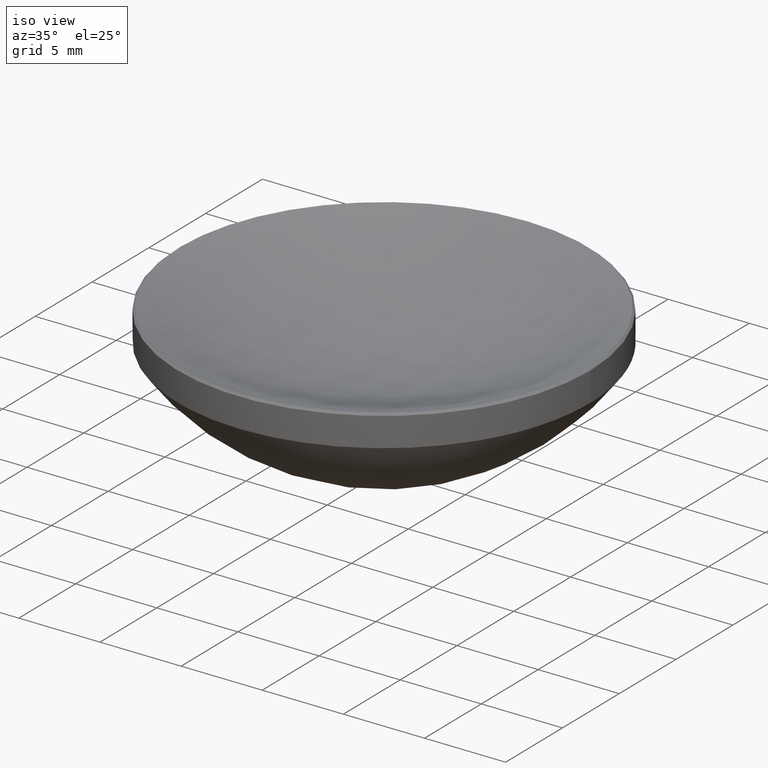
[diagram: clean part render]
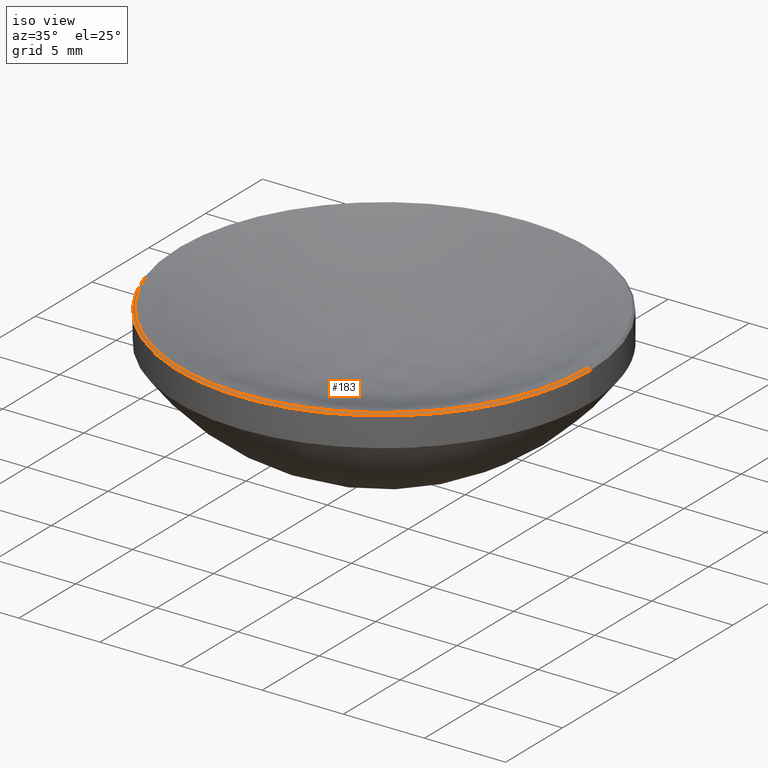
[diagram: same view with one face highlighted and labeled with its STEP entity id]
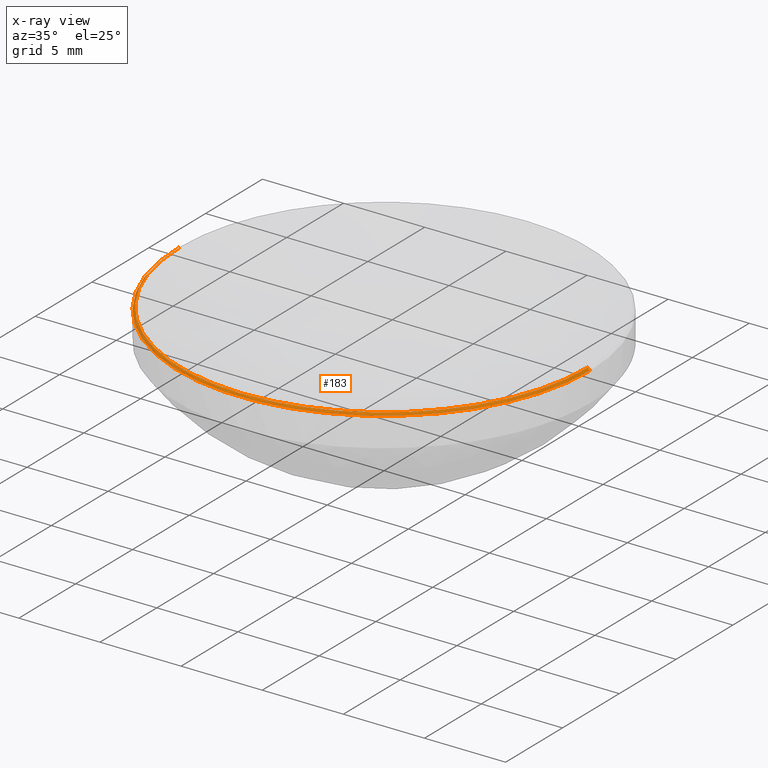
[diagram: x-ray of the same camera — body ghosted, the highlighted face saturated]
A machine part, iso view. The second image highlights one B-rep face of the part: STEP entity #183.
The next image is the same camera in x-ray: the body ghosted, the highlighted face saturated — about 0% of this face is hidden behind the body in this view.
In plain terms, the highlighted conical surface has half-angle 45 deg.
Its self-contained STEP definition (entity closure, byte-faithful):
#9 = VERTEX_POINT ( 'NONE', #266 ) ;
#10 = CARTESIAN_POINT ( 'NONE',  ( -1.539033449312763562E-15, -12.56716181665030874, 11.93283818334969126 ) ) ;
#11 = CARTESIAN_POINT ( 'NONE',  ( 0.000000000000000000, 0.000000000000000000, 11.93283818334968771 ) ) ;
#15 = CIRCLE ( 'NONE', #270, 12.56716181665030341 ) ;
#26 = ORIENTED_EDGE ( 'NONE', *, *, #90, .F. ) ;
#34 = CIRCLE ( 'NONE', #59, 12.69999999999999929 ) ;
#37 = DIRECTION ( 'NONE',  ( 1.000000000000000000, 0.000000000000000000, 0.000000000000000000 ) ) ;
#40 = EDGE_CURVE ( 'NONE', #48, #222, #15, .T. ) ;
#48 = VERTEX_POINT ( 'NONE', #10 ) ;
#53 = ORIENTED_EDGE ( 'NONE', *, *, #214, .T. ) ;
#54 = DIRECTION ( 'NONE',  ( 0.000000000000000000, 0.000000000000000000, -1.000000000000000000 ) ) ;
#55 = CARTESIAN_POINT ( 'NONE',  ( 0.000000000000000000, 0.000000000000000000, 11.79999999999999183 ) ) ;
#59 = AXIS2_PLACEMENT_3D ( 'NONE', #55, #54, #137 ) ;
#66 = VECTOR ( 'NONE', #144, 999.9999999999998863 ) ;
#74 = CARTESIAN_POINT ( 'NONE',  ( 0.000000000000000000, 0.000000000000000000, 11.93283818334969126 ) ) ;
#79 = CARTESIAN_POINT ( 'NONE',  ( 12.69999999999999929, 1.555301434917138433E-15, 11.79999999999999183 ) ) ;
#81 = AXIS2_PLACEMENT_3D ( 'NONE', #11, #148, #105 ) ;
#90 = EDGE_CURVE ( 'NONE', #222, #172, #143, .T. ) ;
#91 = ORIENTED_EDGE ( 'NONE', *, *, #112, .F. ) ;
#94 = ORIENTED_EDGE ( 'NONE', *, *, #258, .F. ) ;
#105 = DIRECTION ( 'NONE',  ( -1.000000000000000000, 0.000000000000000000, 0.000000000000000000 ) ) ;
#109 = ORIENTED_EDGE ( 'NONE', *, *, #40, .F. ) ;
#112 = EDGE_CURVE ( 'NONE', #172, #9, #34, .T. ) ;
#119 = DIRECTION ( 'NONE',  ( 1.000000000000000000, 0.000000000000000000, 0.000000000000000000 ) ) ;
#136 = EDGE_LOOP ( 'NONE', ( #26, #109, #94, #53, #91 ) ) ;
#137 = DIRECTION ( 'NONE',  ( 1.000000000000000000, 0.000000000000000000, 0.000000000000000000 ) ) ;
#143 = LINE ( 'NONE', #178, #253 ) ;
#144 = DIRECTION ( 'NONE',  ( -0.7071067811865430208, 0.000000000000000000, -0.7071067811865521247 ) ) ;
#148 = DIRECTION ( 'NONE',  ( 0.000000000000000000, 0.000000000000000000, -1.000000000000000000 ) ) ;
#163 = AXIS2_PLACEMENT_3D ( 'NONE', #74, #229, #37 ) ;
#172 = VERTEX_POINT ( 'NONE', #79 ) ;
#178 = CARTESIAN_POINT ( 'NONE',  ( 12.56716181665030518, 1.539033449312763168E-15, 11.93283818334968771 ) ) ;
#183 = ADVANCED_FACE ( 'NONE', ( #252 ), #196, .T. ) ;
#187 = VERTEX_POINT ( 'NONE', #256 ) ;
#191 = CARTESIAN_POINT ( 'NONE',  ( 0.000000000000000000, 0.000000000000000000, 11.93283818334969126 ) ) ;
#196 = CONICAL_SURFACE ( 'NONE', #81, 12.56716181665030518, 0.7853981633974418397 ) ;
#199 = DIRECTION ( 'NONE',  ( -0.000000000000000000, -0.000000000000000000, 1.000000000000000000 ) ) ;
#201 = DIRECTION ( 'NONE',  ( 0.7071067811865430208, 8.659560562354877391E-17, -0.7071067811865521247 ) ) ;
#211 = CARTESIAN_POINT ( 'NONE',  ( -12.56716181665030518, 0.000000000000000000, 11.93283818334968771 ) ) ;
#214 = EDGE_CURVE ( 'NONE', #187, #9, #269, .T. ) ;
#221 = CIRCLE ( 'NONE', #163, 12.56716181665030341 ) ;
#222 = VERTEX_POINT ( 'NONE', #233 ) ;
#229 = DIRECTION ( 'NONE',  ( -0.000000000000000000, -0.000000000000000000, 1.000000000000000000 ) ) ;
#233 = CARTESIAN_POINT ( 'NONE',  ( 12.56716181665030341, 1.547167442114950603E-15, 11.93283818334969126 ) ) ;
#252 = FACE_OUTER_BOUND ( 'NONE', #136, .T. ) ;
#253 = VECTOR ( 'NONE', #201, 999.9999999999998863 ) ;
#256 = CARTESIAN_POINT ( 'NONE',  ( -12.56716181665030341, 0.000000000000000000, 11.93283818334969126 ) ) ;
#258 = EDGE_CURVE ( 'NONE', #187, #48, #221, .T. ) ;
#266 = CARTESIAN_POINT ( 'NONE',  ( -12.69999999999999929, 0.000000000000000000, 11.79999999999999183 ) ) ;
#269 = LINE ( 'NONE', #211, #66 ) ;
#270 = AXIS2_PLACEMENT_3D ( 'NONE', #191, #199, #119 ) ;